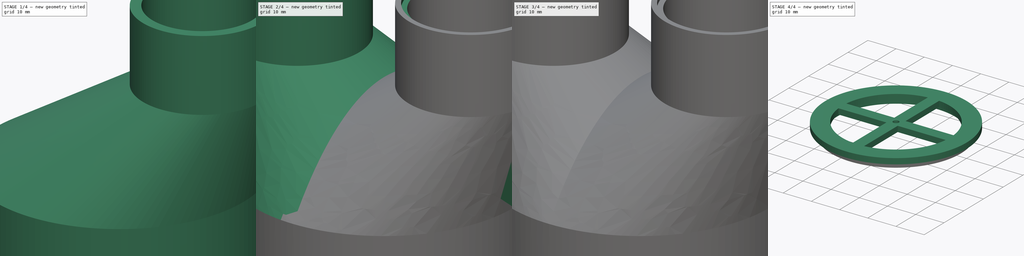
[diagram: build sequence overview — one tinted view per stage of 4, left to right]
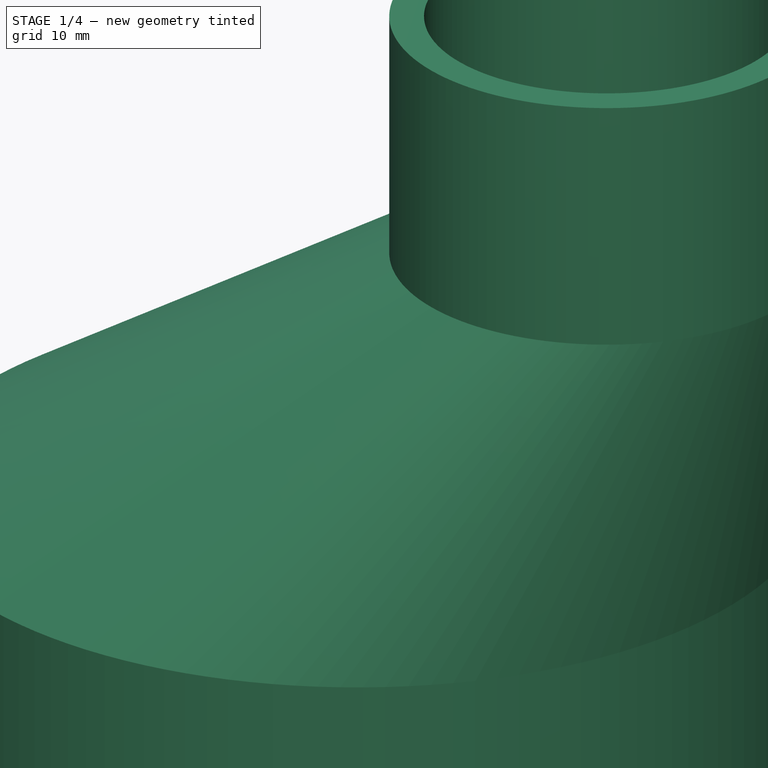
[diagram: stage 1 of 4 — iso view after this stage's code; geometry added in this stage tinted green]
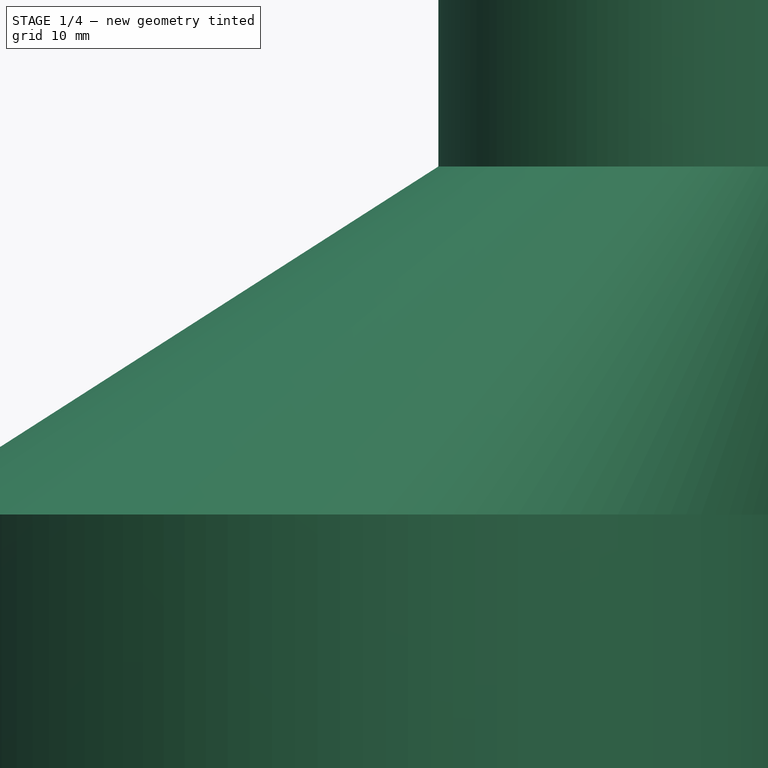
[diagram: stage 1 of 4 — front view after this stage's code; geometry added in this stage tinted green]
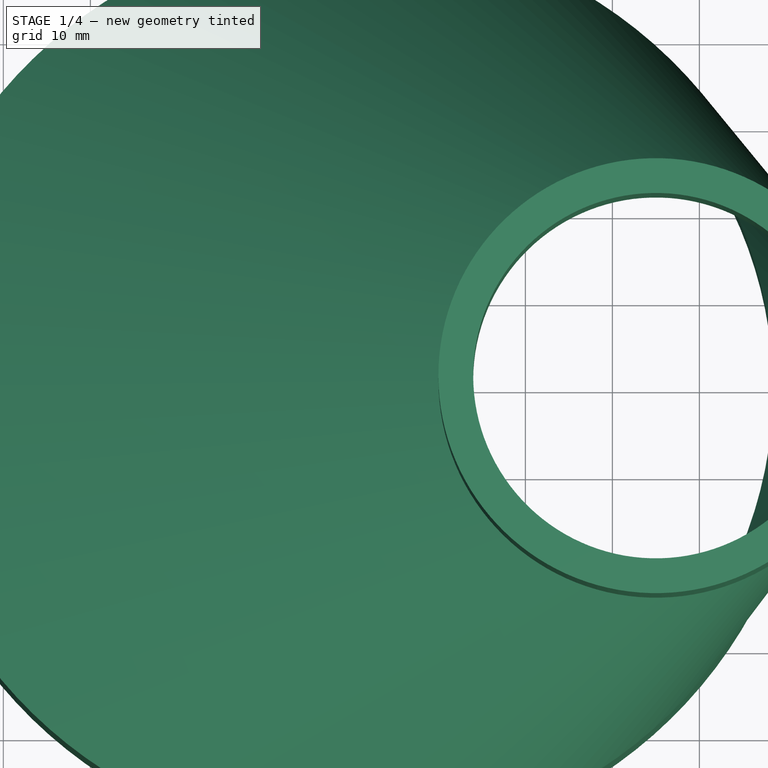
[diagram: stage 1 of 4 — top view after this stage's code; geometry added in this stage tinted green]
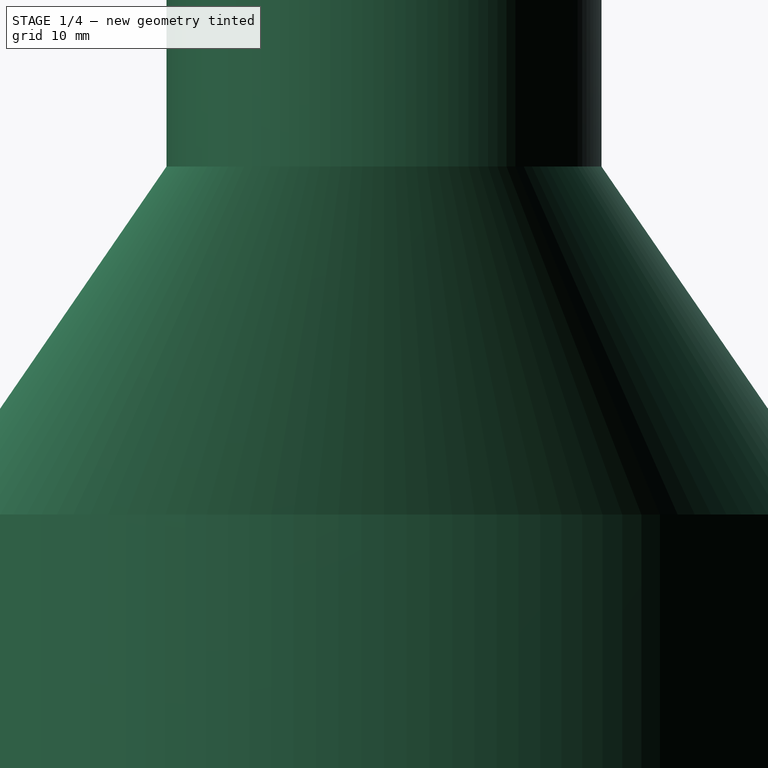
[diagram: stage 1 of 4 — right view after this stage's code; geometry added in this stage tinted green]
FCSTD DOCUMENT  (FreeCAD 1.0R39109 (Git))
Label: 50to100_dual_adapter
License: All rights reserved
LicenseURL: https://en.wikipedia.org/wiki/All_rights_reserved
objects: Sketcher::SketchObject×6, PartDesign::Pad×4, PartDesign::Pocket×4, PartDesign::Mirrored×2, PartDesign::Body×2, PartDesign::AdditiveLoft×1, PartDesign::SubShapeBinder×1
note: 46 computed .brp shape members not serialized (recipe doc carries the construction recipe); baked Part::Feature solids carry a one-line shape summary decoded from their .brp

FEATURE [Sketcher::SketchObject] Sketch
  ArcFitTolerance = 1e-06
  AttachmentSupport = -> [XY_Plane]
  FullyConstrained = true
  MakeInternals = false
  MapMode = 5
  sketch-geometry (4):
    g0: Circle CenterX=0 CenterY=0 CenterZ=0 NormalX=0 NormalY=0 NormalZ=1 AngleXU=0 Radius=48.5
    g1: Circle CenterX=0 CenterY=0 CenterZ=0 NormalX=0 NormalY=0 NormalZ=1 AngleXU=0 Radius=52.5
    g2: GeomPoint X=48.5 Y=0 Z=0
    g3: GeomPoint X=52.5 Y=0 Z=0
  constraints (8):
    c: Coincident(g0,g-1)
    c: Coincident(g1,g0)
    c: PointOnObject(g2,g0)
    c: PointOnObject(g3,g1)
    c: DistanceX(g2,g3) = 4
    c: Diameter(g1) = 105
    c: Horizontal(g3,g2)
    c: Horizontal(g2,g0)
FEATURE [PartDesign::Pad] Pad
  Direction = (0,0,1)
  Length = 40
  Length2 = 10
  Profile = -> Sketch
  ReferenceAxis = -> Sketch [N_Axis]
  Refine = true
  Suppressed = false
  Type = 0
FEATURE [Sketcher::SketchObject] Sketch002
  ArcFitTolerance = 1e-06
  AttachmentOffset = pos=(35,0,40) rot=(0,0,1;0rad)
  AttachmentSupport = -> [Pad]
  FullyConstrained = true
  MakeInternals = false
  MapMode = 5
  Placement = pos=(35,0,80) rot=(0,0,1;0rad)
  sketch-geometry (4):
    g0: Circle CenterX=0 CenterY=0 CenterZ=0 NormalX=0 NormalY=0 NormalZ=1 AngleXU=0 Radius=25
    g1: Circle CenterX=0 CenterY=0 CenterZ=0 NormalX=0 NormalY=0 NormalZ=1 AngleXU=0 Radius=21
    g2: GeomPoint X=21 Y=0 Z=0
    g3: GeomPoint X=25 Y=0 Z=0
  constraints (8):
    c: Coincident(g0,g-1)
    c: Coincident(g1,g0)
    c: Diameter(g0) = 50
    c: PointOnObject(g2,g1)
    c: PointOnObject(g3,g0)
    c: PointOnObject(g2,g-1)
    c: PointOnObject(g3,g-1)
    c: DistanceX(g2,g3) = 4
FEATURE [PartDesign::AdditiveLoft] AdditiveLoft
  BaseFeature = -> Pad
  Closed = false
  Profile = -> Pad [Face4]
  Refine = true
  Ruled = false
  Sections = -> [Sketch002]
  Suppressed = false
FEATURE [PartDesign::Pad] Pad001
  BaseFeature = -> AdditiveLoft
  Direction = (0,0,1)
  Length = 30
  Length2 = 10
  Profile = -> AdditiveLoft [Face5]
  Refine = true
  Suppressed = false
  Type = 0
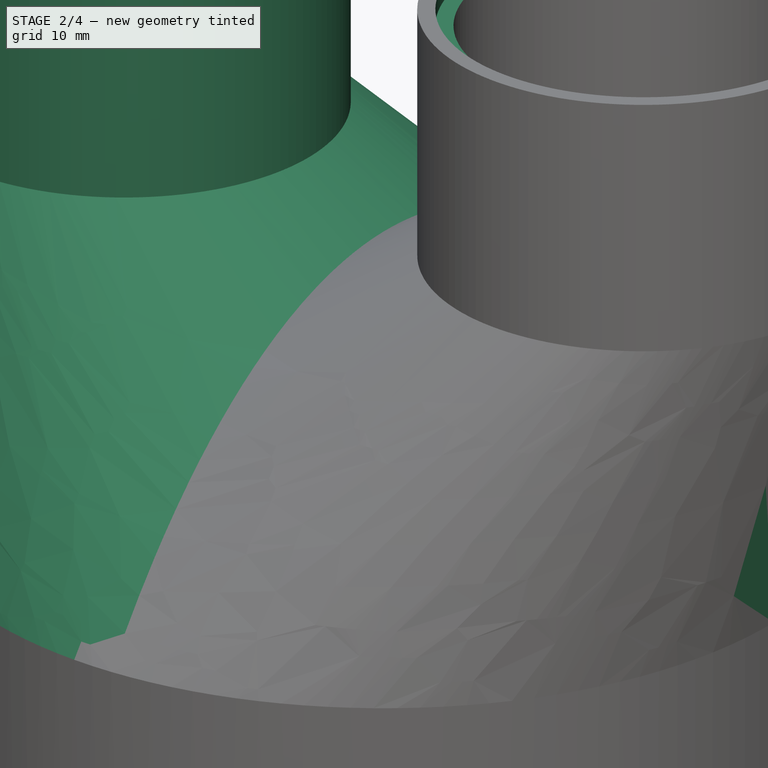
[diagram: stage 2 of 4 — iso view after this stage's code; geometry added in this stage tinted green]
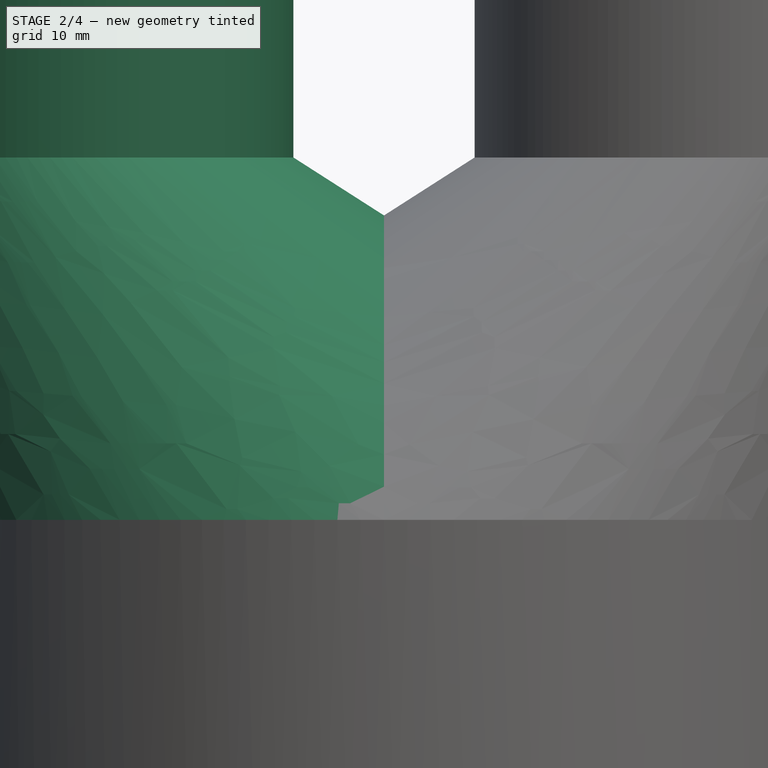
[diagram: stage 2 of 4 — front view after this stage's code; geometry added in this stage tinted green]
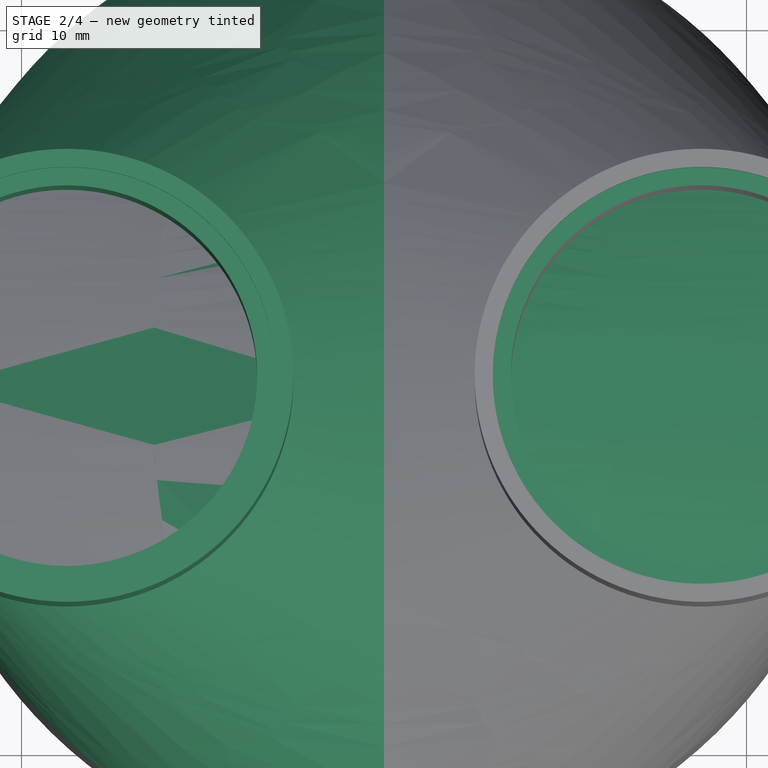
[diagram: stage 2 of 4 — top view after this stage's code; geometry added in this stage tinted green]
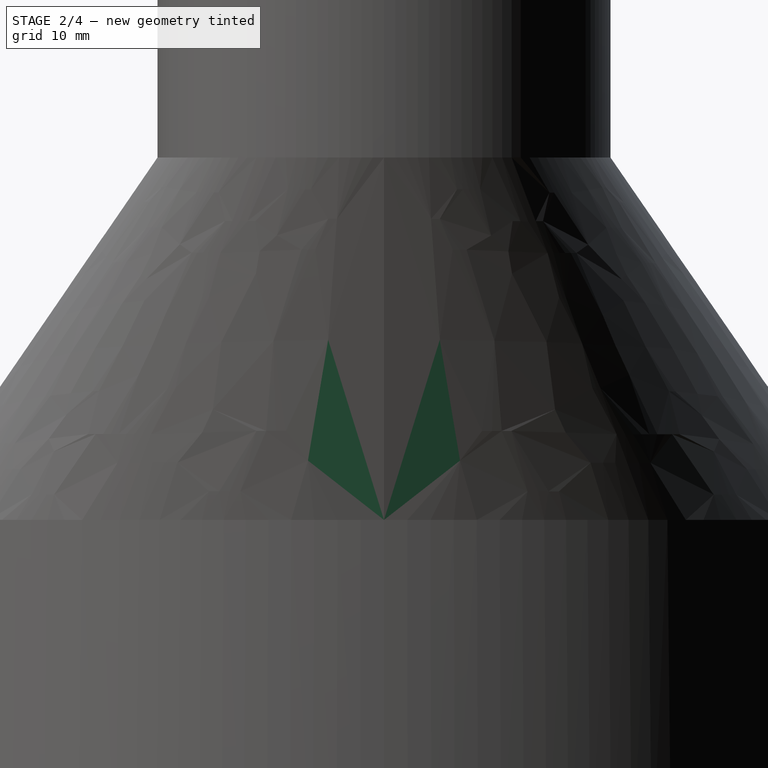
[diagram: stage 2 of 4 — right view after this stage's code; geometry added in this stage tinted green]
FEATURE [PartDesign::Mirrored] Mirrored
  BaseFeature = -> Pad001
  MirrorPlane = -> YZ_Plane
  Originals = -> [AdditiveLoft,Pad001]
  Refine = true
  Suppressed = false
  TransformMode = 0
FEATURE [Sketcher::SketchObject] Sketch004
  ArcFitTolerance = 1e-06
  FullyConstrained = true
  MakeInternals = false
  MapMode = 5
  Placement = pos=(0,0,110) rot=(0,0,1;0rad)
  sketch-geometry (3):
    g0: Circle CenterX=35 CenterY=0 CenterZ=0 NormalX=0 NormalY=0 NormalZ=1 AngleXU=0 Radius=23
    g1: GeomPoint X=12 Y=0 Z=0
    g2: GeomPoint X=14 Y=0 Z=0
  constraints (6):
    c: Coincident(g0,g-3)
    c: PointOnObject(g1,g0)
    c: PointOnObject(g2,g-3)
    c: Horizontal(g0,g2)
    c: Horizontal(g2,g1)
    c: DistanceX(g1,g2) = 2
FEATURE [PartDesign::Pocket] Pocket002
  BaseFeature = -> Mirrored
  Direction = (0,0,-1)
  Length = 2
  Length2 = 5
  Profile = -> Sketch004
  ReferenceAxis = -> Sketch004 [N_Axis]
  Refine = true
  Suppressed = false
  Type = 0
FEATURE [PartDesign::Mirrored] Mirrored001
  BaseFeature = -> Pocket002
  MirrorPlane = -> Sketch004 [V_Axis]
  Originals = -> [Pocket002]
  Refine = true
  Suppressed = false
  TransformMode = 0
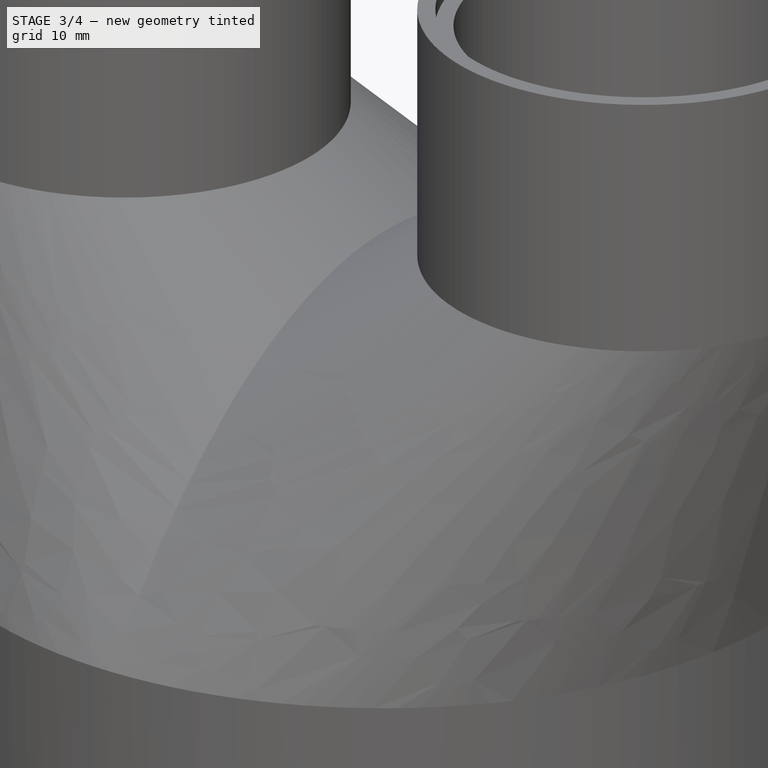
[diagram: stage 3 of 4 — iso view after this stage's code; geometry added in this stage tinted green]
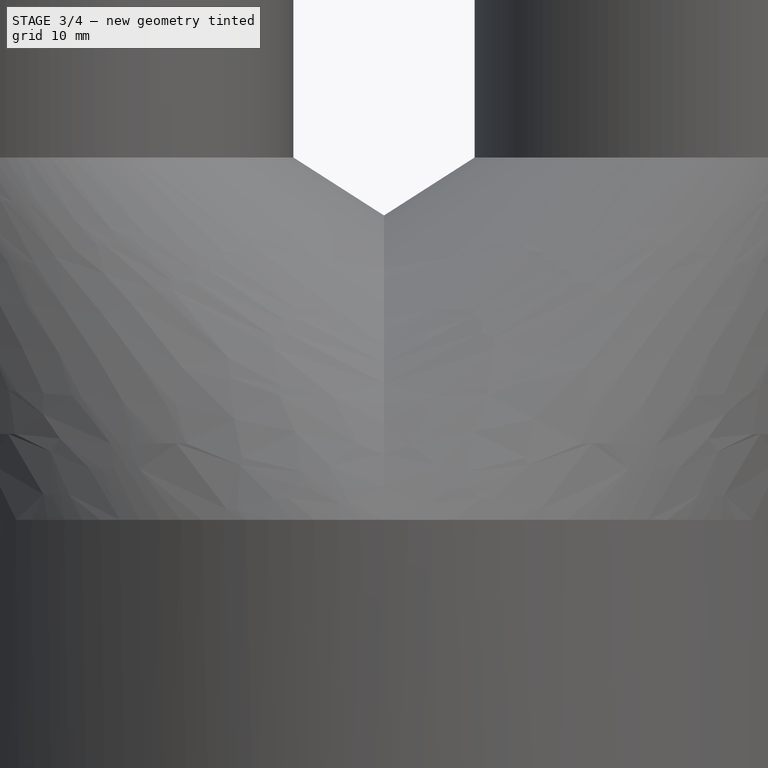
[diagram: stage 3 of 4 — front view after this stage's code; geometry added in this stage tinted green]
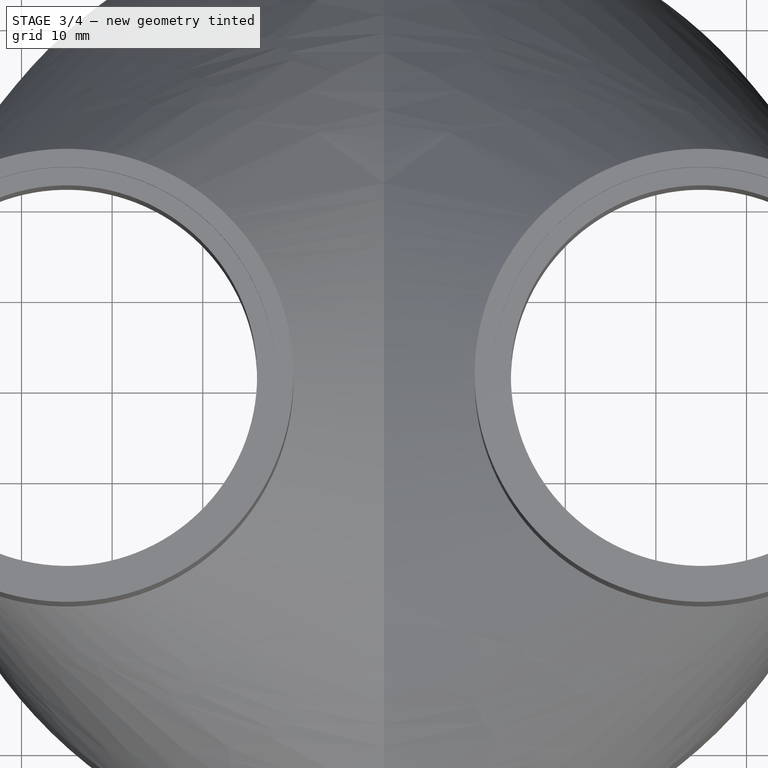
[diagram: stage 3 of 4 — top view after this stage's code; geometry added in this stage tinted green]
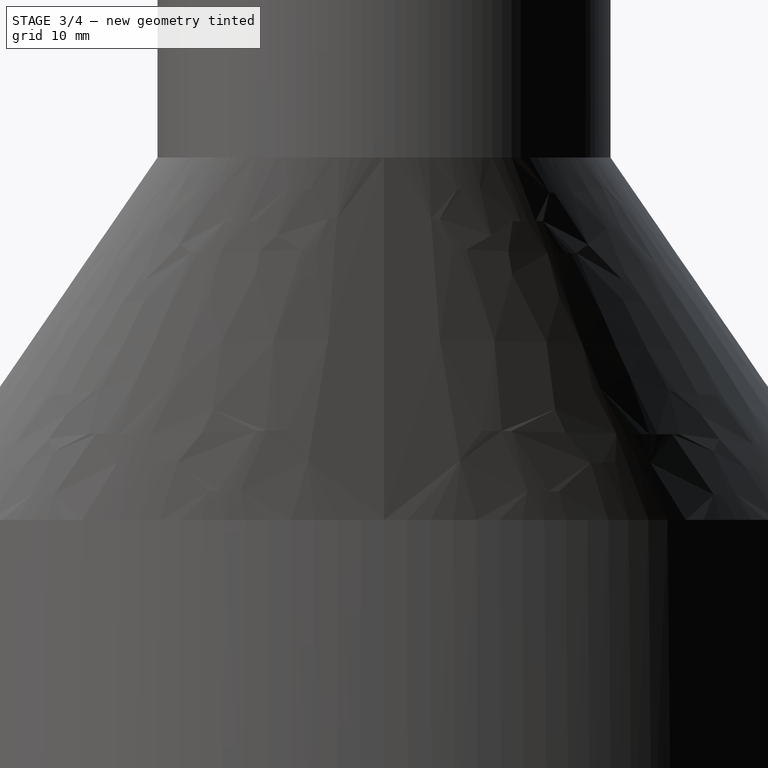
[diagram: stage 3 of 4 — right view after this stage's code; geometry added in this stage tinted green]
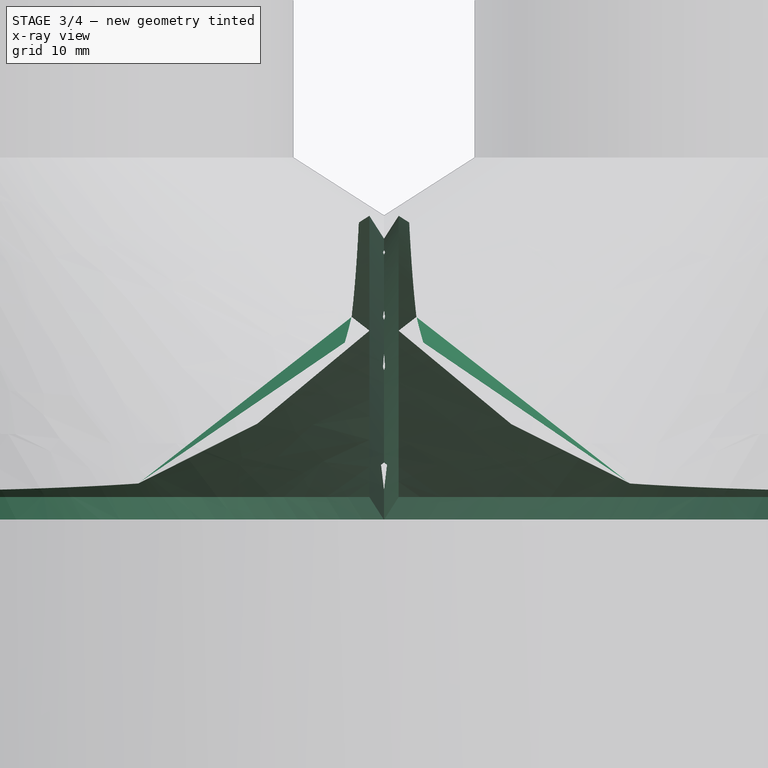
[diagram: stage 3 of 4 — x-ray composite at the front view; earlier geometry ghosted, this stage's added geometry solid]
FEATURE [PartDesign::Body] Body001  label="ReflowValve"
  AllowCompound = false
  Group = -> [Binder,Sketch003,Pad002,Sketch005,Pad003,Sketch006,Pocket003]
  Origin = -> Origin001
  Tip = -> Pocket003
FEATURE [PartDesign::Pocket] Pocket
  BaseFeature = -> Mirrored001
  Direction = (1513.19,-0.0017347,2364.36)
  Length = 3
  Length2 = 5
  Profile = -> Mirrored001 [Face8]
  Refine = true
  Suppressed = false
  Type = 0
FEATURE [PartDesign::Pocket] Pocket004
  BaseFeature = -> Pocket
  Direction = (-1513.19,0.00173471,2364.36)
  Length = 3
  Length2 = 5
  Profile = -> Pocket [Face9]
  Refine = true
  Suppressed = false
  Type = 0
FEATURE [PartDesign::Body] Body  label="MainAdapter"
  AllowCompound = false
  Group = -> [Sketch,Pad,Sketch002,AdditiveLoft,Pad001,Mirrored,Sketch004,Pocket002,Mirrored001,Pocket,Pocket004]
  Origin = -> Origin
  Tip = -> Pocket004
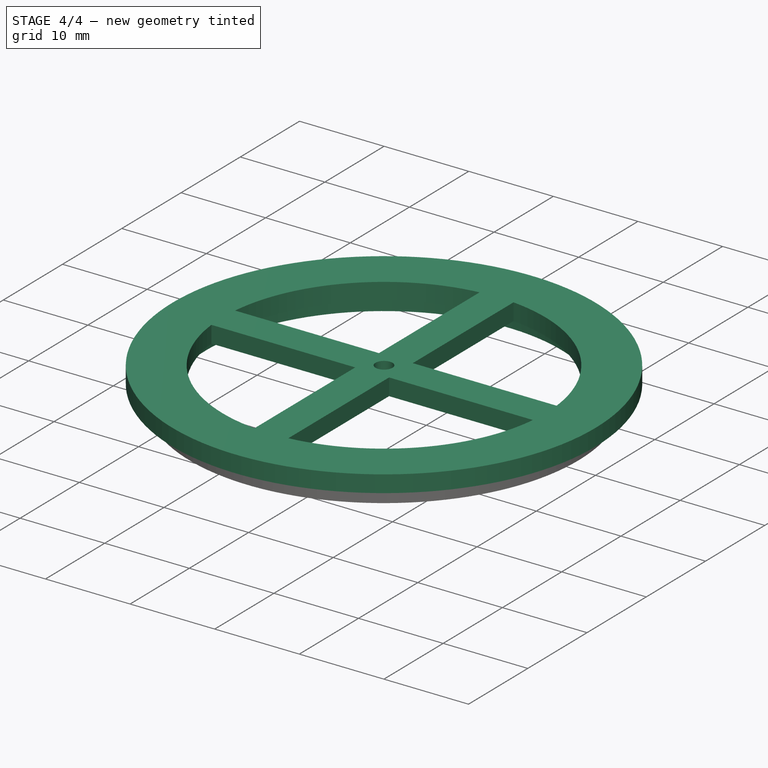
[diagram: stage 4 of 4 — iso view after this stage's code; geometry added in this stage tinted green]
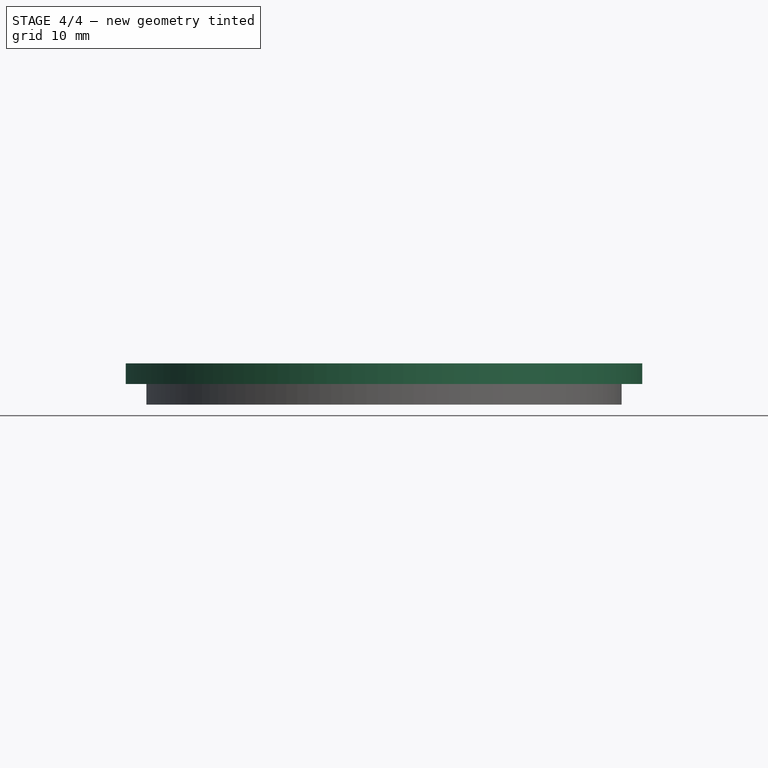
[diagram: stage 4 of 4 — front view after this stage's code; geometry added in this stage tinted green]
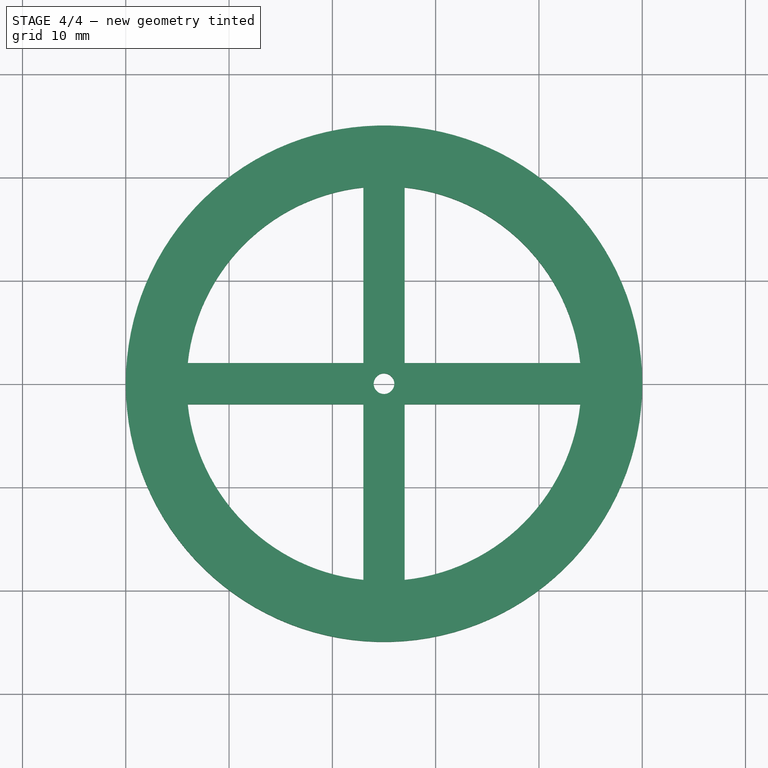
[diagram: stage 4 of 4 — top view after this stage's code; geometry added in this stage tinted green]
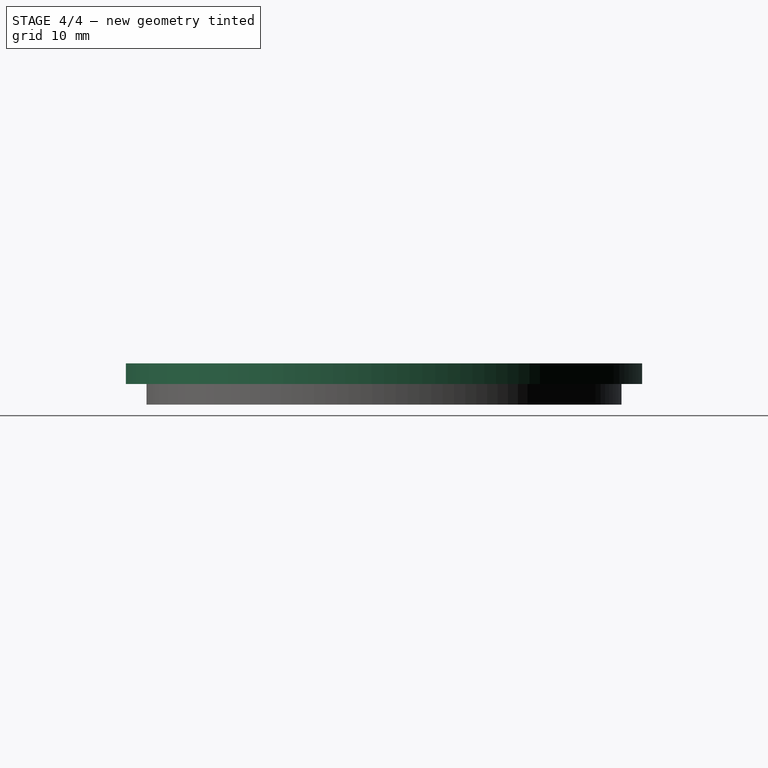
[diagram: stage 4 of 4 — right view after this stage's code; geometry added in this stage tinted green]
FEATURE [PartDesign::SubShapeBinder] Binder  label="RimBinder"
  BindCopyOnChange = 0
  BindMode = 0
  ClaimChildren = false
  Context = -> Body001 [Binder.]
  Fuse = false
  MakeFace = true
  OffsetFill = false
  OffsetIntersection = false
  OffsetJoinType = 0
  OffsetOpenResult = false
  PartialLoad = false
  Refine = true
  Relative = true
  Support = -> [Body[Sketch002.]]
  _Version = 2
FEATURE [Sketcher::SketchObject] Sketch003
  ArcFitTolerance = 1e-06
  AttachmentOffset = pos=(0,0,108) rot=(0,0,1;0rad)
  AttachmentSupport = -> [XY_Plane001]
  ExternalGeometry = -> [Binder]
  FullyConstrained = true
  MakeInternals = false
  MapMode = 5
  Placement = pos=(0,0,108) rot=(0,0,1;0rad)
  sketch-geometry (17):
    g0: ArcOfCircle CenterX=35 CenterY=0 CenterZ=0 NormalX=0 NormalY=0 NormalZ=1 AngleXU=0 Radius=19.105 StartAngle=3.24647 EndAngle=4.60751
    g1: LineSegment StartX=16 StartY=2 StartZ=0 EndX=33 EndY=2 EndZ=0
    g2: ArcOfCircle CenterX=35 CenterY=0 CenterZ=0 NormalX=0 NormalY=0 NormalZ=1 AngleXU=0 Radius=19.105 StartAngle=0.104877 EndAngle=1.46592
    g3: LineSegment StartX=37 StartY=2 StartZ=0 EndX=37 EndY=19 EndZ=0
    g4: LineSegment StartX=37 StartY=-2 StartZ=0 EndX=37 EndY=-19 EndZ=0
    g5: LineSegment StartX=37 StartY=-2 StartZ=0 EndX=54 EndY=-2 EndZ=0
    g6: LineSegment StartX=37 StartY=2 StartZ=0 EndX=54 EndY=2 EndZ=0
    g7: ArcOfCircle CenterX=35 CenterY=0 CenterZ=0 NormalX=0 NormalY=0 NormalZ=1 AngleXU=0 Radius=19.105 StartAngle=4.81727 EndAngle=6.17831
    g8: ArcOfCircle CenterX=35 CenterY=0 CenterZ=0 NormalX=0 NormalY=0 NormalZ=1 AngleXU=0 Radius=19.105 StartAngle=1.67567 EndAngle=3.03672
    g9: Circle CenterX=35 CenterY=0 CenterZ=0 NormalX=0 NormalY=0 NormalZ=1 AngleXU=0 Radius=1
    g10: Circle CenterX=35 CenterY=0 CenterZ=0 NormalX=0 NormalY=0 NormalZ=1 AngleXU=0 Radius=23
    g11: GeomPoint X=14 Y=0 Z=0
    g12: GeomPoint X=12 Y=0 Z=0
    g13: GeomPoint X=10 Y=0 Z=0
    g14: LineSegment StartX=33 StartY=2 StartZ=0 EndX=33 EndY=19 EndZ=0
    g15: LineSegment StartX=33 StartY=-2 StartZ=0 EndX=33 EndY=-19 EndZ=0
    g16: LineSegment StartX=16 StartY=-2 StartZ=0 EndX=33 EndY=-2 EndZ=0
  constraints (48):
    c: Coincident(g1,g8)
    c: Horizontal(g1)
    c: PointOnObject(g6,g2)
    c: Equal(g0,g2)
    c: PointOnObject(g2,g6)
    c: Coincident(g0,g2)
    c: Coincident(g7,g5)
    c: PointOnObject(g3,g6)
    c: Vertical(g3)
    c: PointOnObject(g4,g5)
    c: PointOnObject(g4,g7)
    c: Vertical(g4)
    c: PointOnObject(g5,g4)
    c: PointOnObject(g6,g3)
    c: Equal(g0,g7)
    c: PointOnObject(g7,g4)
    c: Coincident(g0,g7)
    c: Coincident(g2,g8)
    c: DistanceY(g0,g1) = 4
    c: Horizontal(g6)
    c: Horizontal(g5)
    c: Diameter(g9) = 2
    c: Coincident(g10,g9)
    c: PointOnObject(g11,g-4)
    c: PointOnObject(g12,g10)
    c: PointOnObject(g13,g-3)
    c: PointOnObject(g13,g-1)
    c: PointOnObject(g12,g-1)
    c: PointOnObject(g11,g-1)
    c: DistanceX(g13,g12) = 2
    c: Coincident(g0,g9)
    c: Coincident(g0,g-4)
    c: Coincident(g14,g1)
    c: Vertical(g14)
    c: Coincident(g8,g14)
    c: Vertical(g15)
    c: Coincident(g0,g15)
    c: Coincident(g16,g0)
    c: Coincident(g16,g15)
    c: Horizontal(g16)
    c: Coincident(g3,g2)
    c: DistanceX(g8,g2) = 4
    c: Symmetric(g15,g3,g0)
    c: Symmetric(g1,g4,g0)
    c: Horizontal(g8,g2)
    c: Vertical(g1,g0)
    c: Horizontal(g1,g3)
    c: DistanceX(g11,g0) = 2
FEATURE [PartDesign::Pad] Pad002
  Direction = (0,0,1)
  Length = 4
  Length2 = 10
  Profile = -> Sketch003
  ReferenceAxis = -> Sketch003 [N_Axis]
  Refine = true
  Suppressed = false
  Type = 0
FEATURE [Sketcher::SketchObject] Sketch005
  ArcFitTolerance = 1e-06
  AttachmentSupport = -> [Pad002]
  ExternalGeometry = -> [Pad002]
  FullyConstrained = true
  MakeInternals = false
  MapMode = 5
  Placement = pos=(0,0,112) rot=(0,0,1;0rad)
  sketch-geometry (2):
    g0: Circle CenterX=35 CenterY=0 CenterZ=0 NormalX=0 NormalY=0 NormalZ=1 AngleXU=0 Radius=25
    g1: Circle CenterX=35 CenterY=0 CenterZ=0 NormalX=0 NormalY=0 NormalZ=1 AngleXU=0 Radius=19.105
  constraints (4):
    c: Coincident(g0,g-3)
    c: Coincident(g1,g0)
    c: Equal(g1,g-4)
    c: Diameter(g0) = 50
FEATURE [PartDesign::Pad] Pad003
  BaseFeature = -> Pad002
  Direction = (0,0,1)
  Length = 2
  Length2 = 10
  Profile = -> Sketch005
  ReferenceAxis = -> Sketch005 [N_Axis]
  Refine = true
  Reversed = true
  Suppressed = false
  Type = 0
FEATURE [Sketcher::SketchObject] Sketch006
  ArcFitTolerance = 1e-06
  AttachmentSupport = -> [Pad003]
  ExternalGeometry = -> [Pad003]
  FullyConstrained = true
  MakeInternals = false
  MapMode = 5
  Placement = pos=(0,0,108) rot=(1,0,0;3.14159rad)
  sketch-geometry (3):
    g0: Circle CenterX=35 CenterY=0 CenterZ=0 NormalX=0 NormalY=0 NormalZ=1 AngleXU=0 Radius=21
    g1: GeomPoint X=12 Y=0 Z=0
    g2: GeomPoint X=14 Y=0 Z=0
  constraints (6):
    c: Coincident(g0,g-3)
    c: PointOnObject(g1,g-3)
    c: PointOnObject(g2,g0)
    c: Horizontal(g1,g2)
    c: Horizontal(g2,g0)
    c: DistanceX(g1,g2) = 2
FEATURE [PartDesign::Pocket] Pocket003
  BaseFeature = -> Pad003
  Direction = (0,0,1)
  Length = 2
  Length2 = 5
  Profile = -> Sketch006
  ReferenceAxis = -> Sketch006 [N_Axis]
  Refine = true
  Suppressed = false
  Type = 0
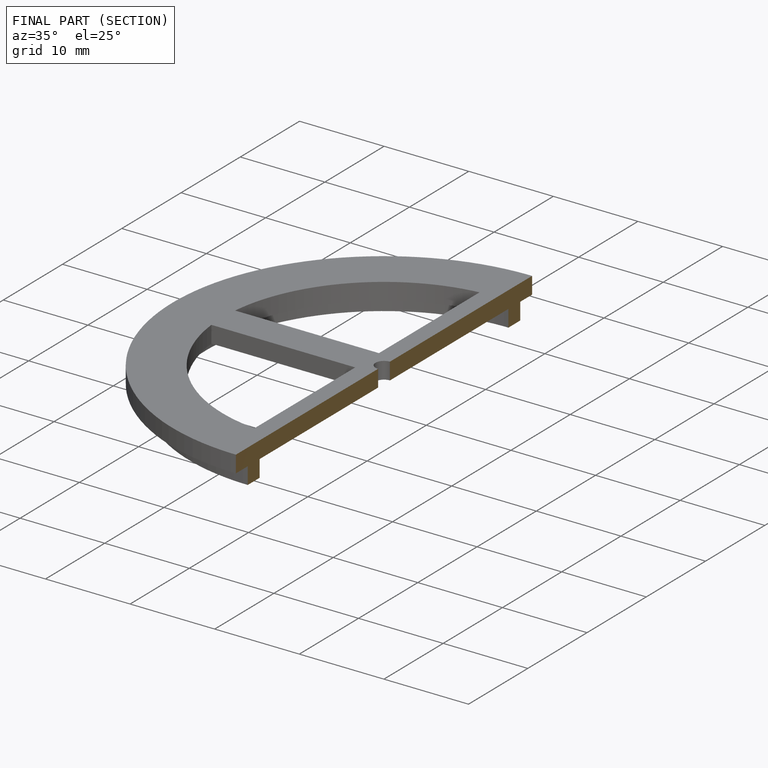
[diagram: finished part — half-section view (interior)]
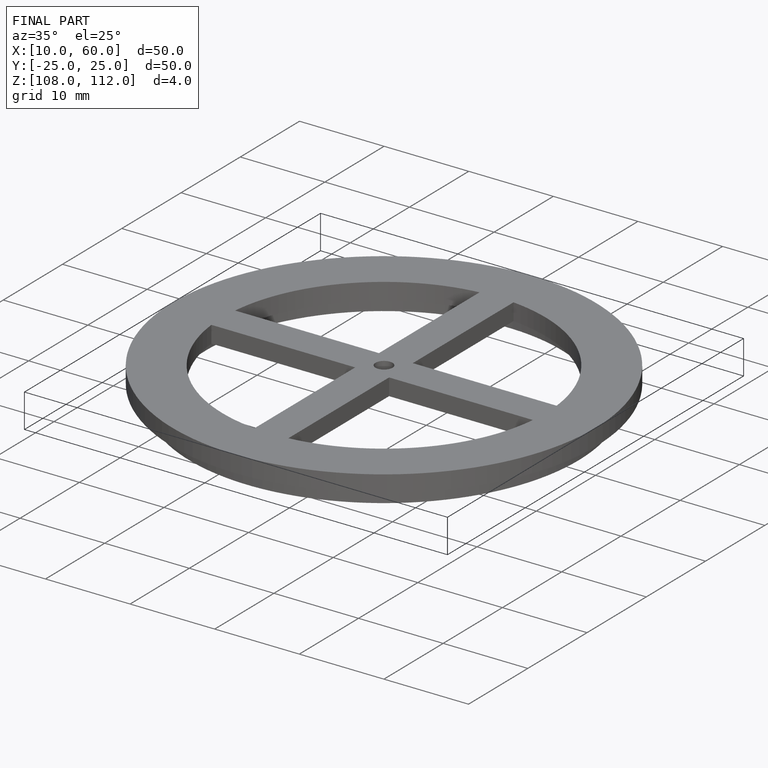
[diagram: finished part — iso view with bounding-box wireframe]
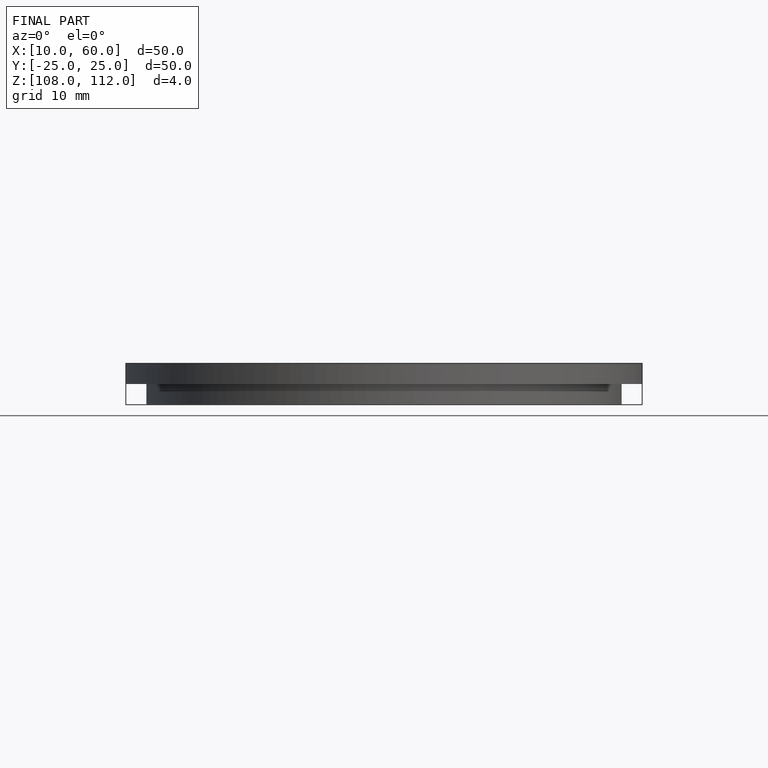
[diagram: finished part — front view with bounding-box wireframe]
